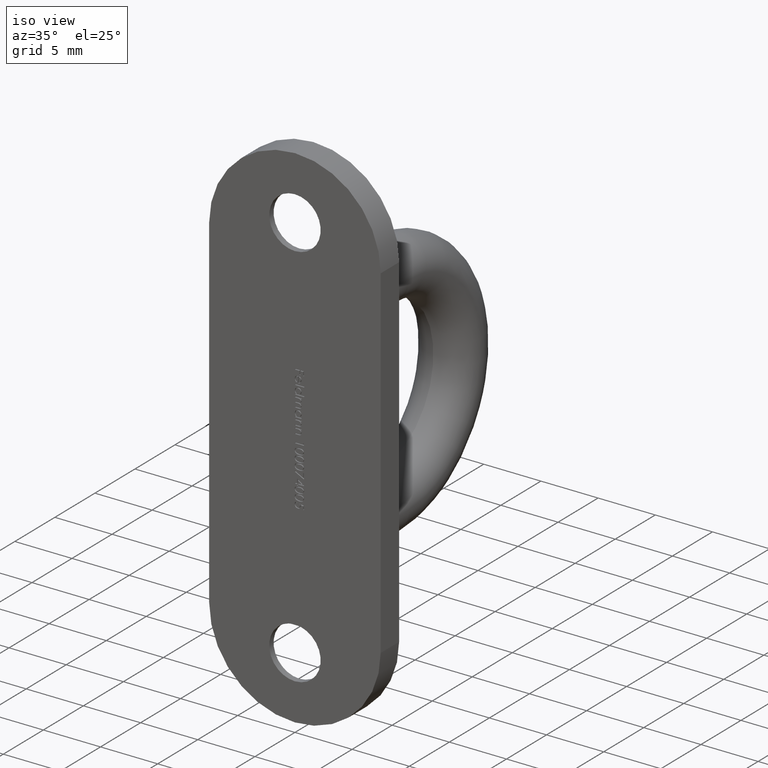
[diagram: clean part render]
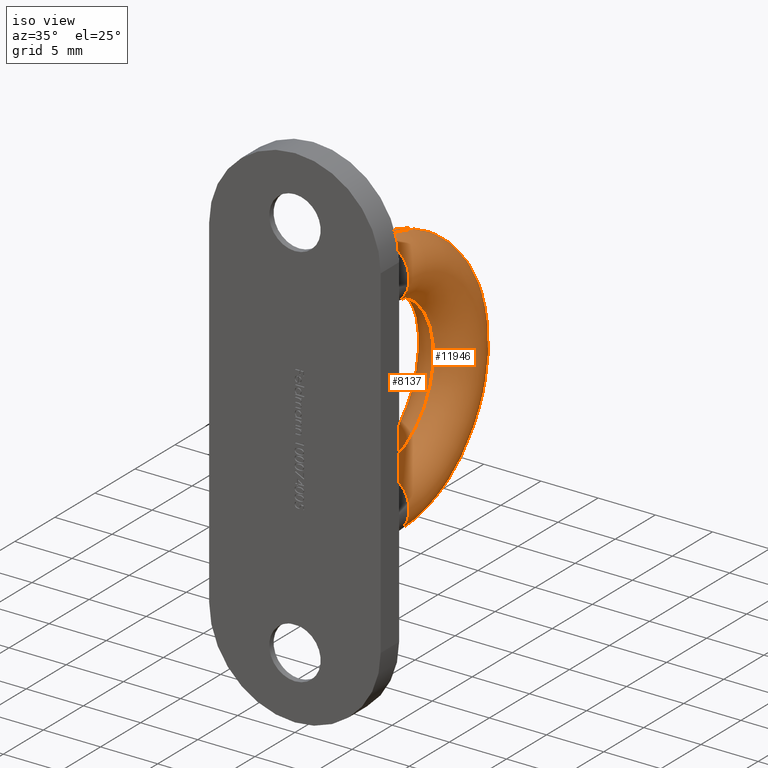
[diagram: same view with one multi-face feature highlighted, each face labeled with its STEP entity id]
A machine part, iso view. The highlighted faces form ONE feature: a constant-radius fillet chain: 2 tangent blend faces with common blend radius 2.5 mm. The faces share edges in the B-rep.
Their STEP definitions:
[1] entity #8137 (Torus):
#50 = AXIS2_PLACEMENT_3D ( 'NONE', #7907, #10056, #6911 ) ;
#290 = CARTESIAN_POINT ( 'NONE',  ( 0.0000000000000000000, 10.69999999999999900, -11.60000000000000100 ) ) ;
#303 = AXIS2_PLACEMENT_3D ( 'NONE', #2945, #11394, #11307 ) ;
#926 = CIRCLE ( 'NONE', #50, 11.60000000000000100 ) ;
#1074 = ORIENTED_EDGE ( 'NONE', *, *, #8513, .T. ) ;
#1319 = CIRCLE ( 'NONE', #9101, 2.500000000000000400 ) ;
#1957 = CARTESIAN_POINT ( 'NONE',  ( 0.0000000000000000000, 10.69999999999999900, -9.099999999999999600 ) ) ;
#2295 = TOROIDAL_SURFACE ( 'NONE', #303, 9.099999999999999600, 2.500000000000000400 ) ;
#2541 = CARTESIAN_POINT ( 'NONE',  ( 3.061616997868383600E-016, 10.69999999999999800, 0.0000000000000000000 ) ) ;
#2885 = EDGE_CURVE ( 'NONE', #10539, #13097, #13237, .T. ) ;
#2945 = CARTESIAN_POINT ( 'NONE',  ( 0.0000000000000000000, 10.69999999999999800, 0.0000000000000000000 ) ) ;
#3379 = DIRECTION ( 'NONE',  ( -1.000000000000000000, -0.0000000000000000000, 0.0000000000000000000 ) ) ;
#3572 = ORIENTED_EDGE ( 'NONE', *, *, #2885, .F. ) ;
#4056 = AXIS2_PLACEMENT_3D ( 'NONE', #2541, #3379, #12835 ) ;
#5060 = CIRCLE ( 'NONE', #4056, 6.599999999999999600 ) ;
#5752 = DIRECTION ( 'NONE',  ( 0.0000000000000000000, -1.000000000000000000, 0.0000000000000000000 ) ) ;
#6090 = DIRECTION ( 'NONE',  ( 0.0000000000000000000, 0.0000000000000000000, 1.000000000000000000 ) ) ;
#6911 = DIRECTION ( 'NONE',  ( 0.0000000000000000000, 0.0000000000000000000, 1.000000000000000000 ) ) ;
#7094 = ORIENTED_EDGE ( 'NONE', *, *, #8369, .F. ) ;
#7563 = CARTESIAN_POINT ( 'NONE',  ( 0.0000000000000000000, 10.69999999999999800, 6.599999999999999600 ) ) ;
#7579 = VERTEX_POINT ( 'NONE', #290 ) ;
#7833 = CARTESIAN_POINT ( 'NONE',  ( 0.0000000000000000000, 10.69999999999999800, 9.099999999999999600 ) ) ;
#7907 = CARTESIAN_POINT ( 'NONE',  ( 0.0000000000000000000, 10.69999999999999800, 0.0000000000000000000 ) ) ;
#8137 = ADVANCED_FACE ( 'NONE', ( #8466 ), #2295, .T. ) ;
#8214 = DIRECTION ( 'NONE',  ( 0.0000000000000000000, 1.000000000000000000, 1.224646799147353200E-016 ) ) ;
#8369 = EDGE_CURVE ( 'NONE', #13097, #10023, #5060, .T. ) ;
#8466 = FACE_OUTER_BOUND ( 'NONE', #12361, .T. ) ;
#8513 = EDGE_CURVE ( 'NONE', #7579, #10023, #1319, .T. ) ;
#9058 = EDGE_CURVE ( 'NONE', #10539, #7579, #926, .T. ) ;
#9101 = AXIS2_PLACEMENT_3D ( 'NONE', #1957, #8214, #6090 ) ;
#9603 = CARTESIAN_POINT ( 'NONE',  ( 3.061616997868383600E-016, 10.69999999999999800, 11.60000000000000100 ) ) ;
#10023 = VERTEX_POINT ( 'NONE', #11478 ) ;
#10056 = DIRECTION ( 'NONE',  ( -1.000000000000000000, -0.0000000000000000000, 0.0000000000000000000 ) ) ;
#10181 = AXIS2_PLACEMENT_3D ( 'NONE', #7833, #5752, #11912 ) ;
#10539 = VERTEX_POINT ( 'NONE', #9603 ) ;
#11307 = DIRECTION ( 'NONE',  ( 0.0000000000000000000, 0.0000000000000000000, 1.000000000000000000 ) ) ;
#11394 = DIRECTION ( 'NONE',  ( -1.000000000000000000, -0.0000000000000000000, 0.0000000000000000000 ) ) ;
#11478 = CARTESIAN_POINT ( 'NONE',  ( 3.061616997868383600E-016, 10.69999999999999900, -6.599999999999999600 ) ) ;
#11912 = DIRECTION ( 'NONE',  ( 0.0000000000000000000, 0.0000000000000000000, -1.000000000000000000 ) ) ;
#12358 = ORIENTED_EDGE ( 'NONE', *, *, #9058, .T. ) ;
#12361 = EDGE_LOOP ( 'NONE', ( #3572, #12358, #1074, #7094 ) ) ;
#12835 = DIRECTION ( 'NONE',  ( 0.0000000000000000000, 0.0000000000000000000, 1.000000000000000000 ) ) ;
#13097 = VERTEX_POINT ( 'NONE', #7563 ) ;
#13237 = CIRCLE ( 'NONE', #10181, 2.500000000000000400 ) ;
[2] entity #11946 (Torus):
#50 = AXIS2_PLACEMENT_3D ( 'NONE', #7907, #10056, #6911 ) ;
#58 = AXIS2_PLACEMENT_3D ( 'NONE', #5228, #13446, #7225 ) ;
#290 = CARTESIAN_POINT ( 'NONE',  ( 0.0000000000000000000, 10.69999999999999900, -11.60000000000000100 ) ) ;
#381 = FACE_OUTER_BOUND ( 'NONE', #11805, .T. ) ;
#926 = CIRCLE ( 'NONE', #50, 11.60000000000000100 ) ;
#1600 = CARTESIAN_POINT ( 'NONE',  ( 0.0000000000000000000, 10.69999999999999900, -9.099999999999999600 ) ) ;
#1768 = EDGE_CURVE ( 'NONE', #13097, #10539, #11615, .T. ) ;
#2541 = CARTESIAN_POINT ( 'NONE',  ( 3.061616997868383600E-016, 10.69999999999999800, 0.0000000000000000000 ) ) ;
#2585 = DIRECTION ( 'NONE',  ( 0.0000000000000000000, 0.0000000000000000000, 1.000000000000000000 ) ) ;
#3145 = TOROIDAL_SURFACE ( 'NONE', #11801, 9.099999999999999600, 2.500000000000000400 ) ;
#3223 = ORIENTED_EDGE ( 'NONE', *, *, #1768, .F. ) ;
#3313 = ORIENTED_EDGE ( 'NONE', *, *, #4557, .T. ) ;
#3379 = DIRECTION ( 'NONE',  ( -1.000000000000000000, -0.0000000000000000000, 0.0000000000000000000 ) ) ;
#3764 = DIRECTION ( 'NONE',  ( 0.0000000000000000000, 1.000000000000000000, 1.224646799147353200E-016 ) ) ;
#4056 = AXIS2_PLACEMENT_3D ( 'NONE', #2541, #3379, #12835 ) ;
#4557 = EDGE_CURVE ( 'NONE', #10023, #7579, #11569, .T. ) ;
#5060 = CIRCLE ( 'NONE', #4056, 6.599999999999999600 ) ;
#5228 = CARTESIAN_POINT ( 'NONE',  ( 0.0000000000000000000, 10.69999999999999800, 9.099999999999999600 ) ) ;
#5639 = ORIENTED_EDGE ( 'NONE', *, *, #9058, .F. ) ;
#6911 = DIRECTION ( 'NONE',  ( 0.0000000000000000000, 0.0000000000000000000, 1.000000000000000000 ) ) ;
#7225 = DIRECTION ( 'NONE',  ( 0.0000000000000000000, 0.0000000000000000000, -1.000000000000000000 ) ) ;
#7563 = CARTESIAN_POINT ( 'NONE',  ( 0.0000000000000000000, 10.69999999999999800, 6.599999999999999600 ) ) ;
#7579 = VERTEX_POINT ( 'NONE', #290 ) ;
#7849 = DIRECTION ( 'NONE',  ( -1.000000000000000000, -0.0000000000000000000, 0.0000000000000000000 ) ) ;
#7907 = CARTESIAN_POINT ( 'NONE',  ( 0.0000000000000000000, 10.69999999999999800, 0.0000000000000000000 ) ) ;
#8369 = EDGE_CURVE ( 'NONE', #13097, #10023, #5060, .T. ) ;
#9058 = EDGE_CURVE ( 'NONE', #10539, #7579, #926, .T. ) ;
#9603 = CARTESIAN_POINT ( 'NONE',  ( 3.061616997868383600E-016, 10.69999999999999800, 11.60000000000000100 ) ) ;
#9730 = AXIS2_PLACEMENT_3D ( 'NONE', #1600, #3764, #12349 ) ;
#10023 = VERTEX_POINT ( 'NONE', #11478 ) ;
#10056 = DIRECTION ( 'NONE',  ( -1.000000000000000000, -0.0000000000000000000, 0.0000000000000000000 ) ) ;
#10539 = VERTEX_POINT ( 'NONE', #9603 ) ;
#11012 = ORIENTED_EDGE ( 'NONE', *, *, #8369, .T. ) ;
#11478 = CARTESIAN_POINT ( 'NONE',  ( 3.061616997868383600E-016, 10.69999999999999900, -6.599999999999999600 ) ) ;
#11569 = CIRCLE ( 'NONE', #9730, 2.500000000000000400 ) ;
#11615 = CIRCLE ( 'NONE', #58, 2.500000000000000400 ) ;
#11801 = AXIS2_PLACEMENT_3D ( 'NONE', #13019, #7849, #2585 ) ;
#11805 = EDGE_LOOP ( 'NONE', ( #5639, #3223, #11012, #3313 ) ) ;
#11946 = ADVANCED_FACE ( 'NONE', ( #381 ), #3145, .T. ) ;
#12349 = DIRECTION ( 'NONE',  ( 0.0000000000000000000, 0.0000000000000000000, 1.000000000000000000 ) ) ;
#12835 = DIRECTION ( 'NONE',  ( 0.0000000000000000000, 0.0000000000000000000, 1.000000000000000000 ) ) ;
#13019 = CARTESIAN_POINT ( 'NONE',  ( 0.0000000000000000000, 10.69999999999999800, 0.0000000000000000000 ) ) ;
#13097 = VERTEX_POINT ( 'NONE', #7563 ) ;
#13446 = DIRECTION ( 'NONE',  ( 0.0000000000000000000, -1.000000000000000000, 0.0000000000000000000 ) ) ;